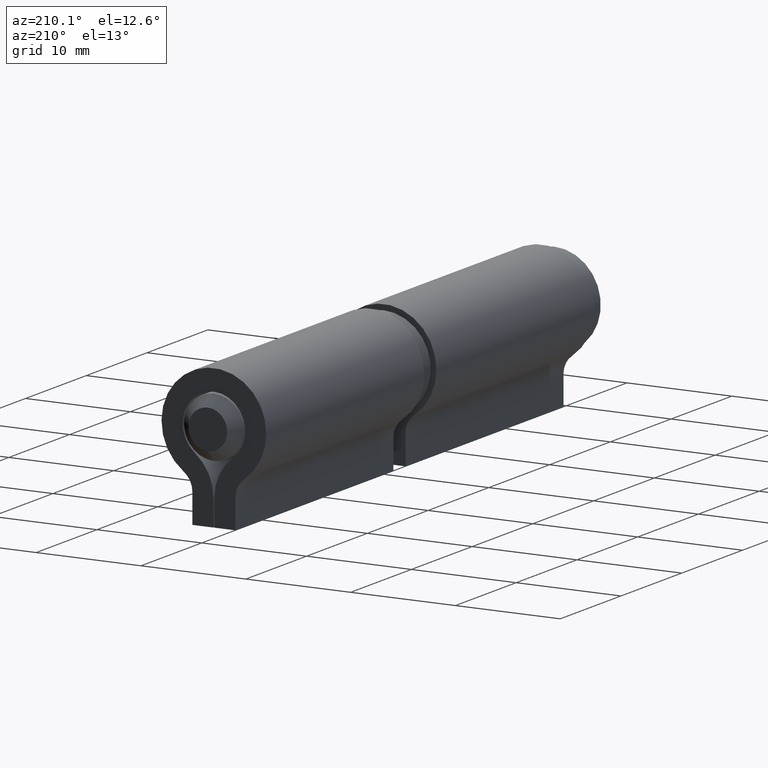
[diagram: clean part render]
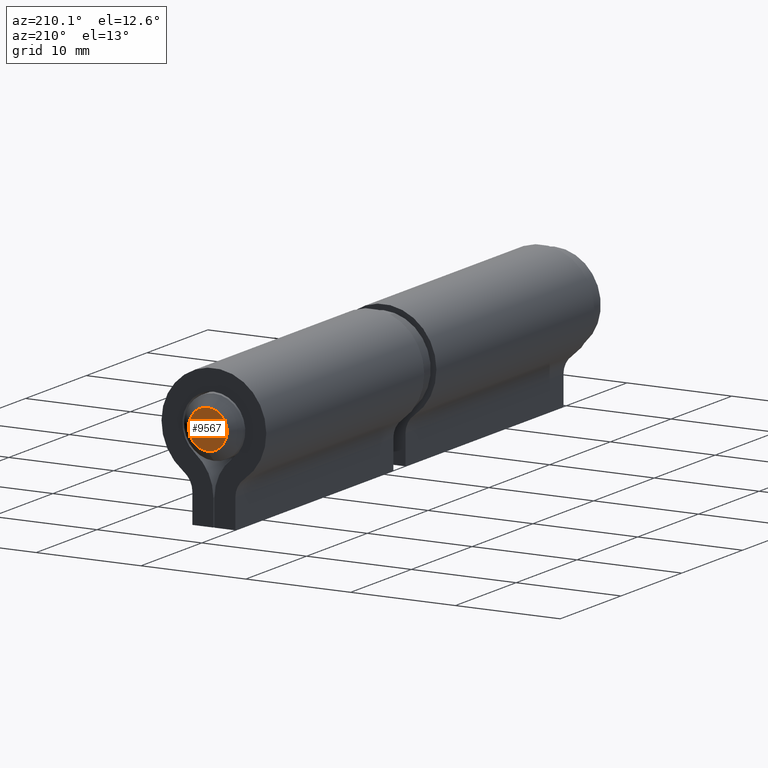
[diagram: same view with one face highlighted and labeled with its STEP entity id]
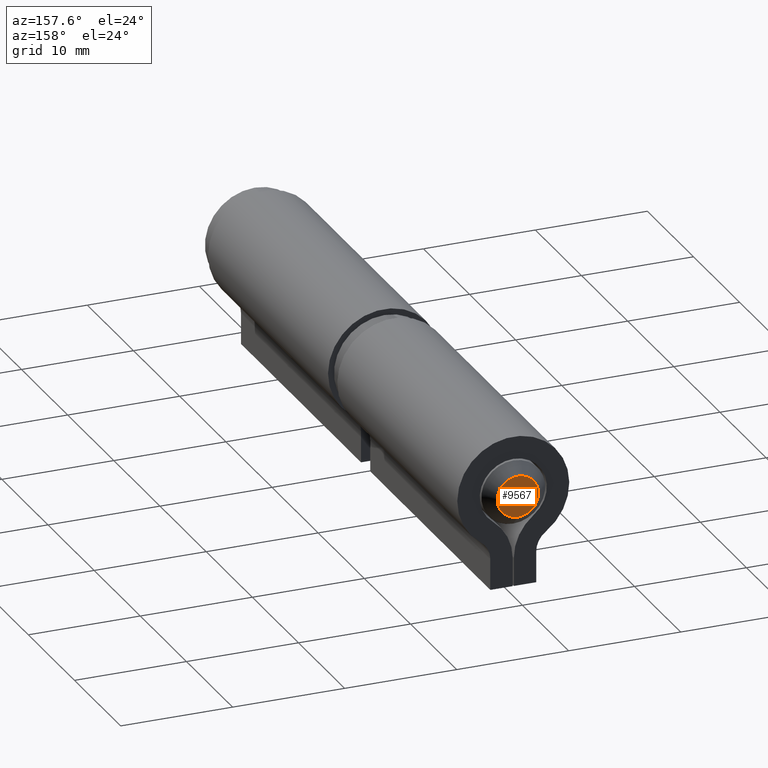
[diagram: same view with one face highlighted and labeled with its STEP entity id]
A machine part, auxiliary view. The second image highlights one B-rep face of the part: STEP entity #9567.
A second angle (auxiliary view) of the same face is appended — the face is thin or edge-on in the first view.
In plain terms, the highlighted planar face has unit normal (0, -1, 0).
Its self-contained STEP definition (entity closure, byte-faithful):
#380 = DIRECTION ( 'NONE',  ( 0.000000000000000000, 0.000000000000000000, -1.000000000000000000 ) ) ;
#513 = CARTESIAN_POINT ( 'NONE',  ( 2.850000000000005418, 28.99999999999999645, 0.000000000000000000 ) ) ;
#1131 = AXIS2_PLACEMENT_3D ( 'NONE', #513, #10670, #6149 ) ;
#1480 = CARTESIAN_POINT ( 'NONE',  ( 3.469446951953614189E-15, 28.99999999999999645, 0.000000000000000000 ) ) ;
#2161 = CARTESIAN_POINT ( 'NONE',  ( 3.469446951953614189E-15, 28.99999999999999645, -1.850000000000004530 ) ) ;
#3439 = VERTEX_POINT ( 'NONE', #2161 ) ;
#4646 = FACE_OUTER_BOUND ( 'NONE', #13244, .T. ) ;
#6043 = CIRCLE ( 'NONE', #7306, 1.850000000000004530 ) ;
#6149 = DIRECTION ( 'NONE',  ( 0.000000000000000000, -0.000000000000000000, -1.000000000000000000 ) ) ;
#7306 = AXIS2_PLACEMENT_3D ( 'NONE', #1480, #9397, #380 ) ;
#7607 = EDGE_CURVE ( 'NONE', #3439, #3439, #6043, .T. ) ;
#9397 = DIRECTION ( 'NONE',  ( -0.000000000000000000, 1.000000000000000000, -0.000000000000000000 ) ) ;
#9567 = ADVANCED_FACE ( 'NONE', ( #4646 ), #10631, .F. ) ;
#10631 = PLANE ( 'NONE',  #1131 ) ;
#10670 = DIRECTION ( 'NONE',  ( 0.000000000000000000, -1.000000000000000000, 0.000000000000000000 ) ) ;
#12785 = ORIENTED_EDGE ( 'NONE', *, *, #7607, .T. ) ;
#13244 = EDGE_LOOP ( 'NONE', ( #12785 ) ) ;